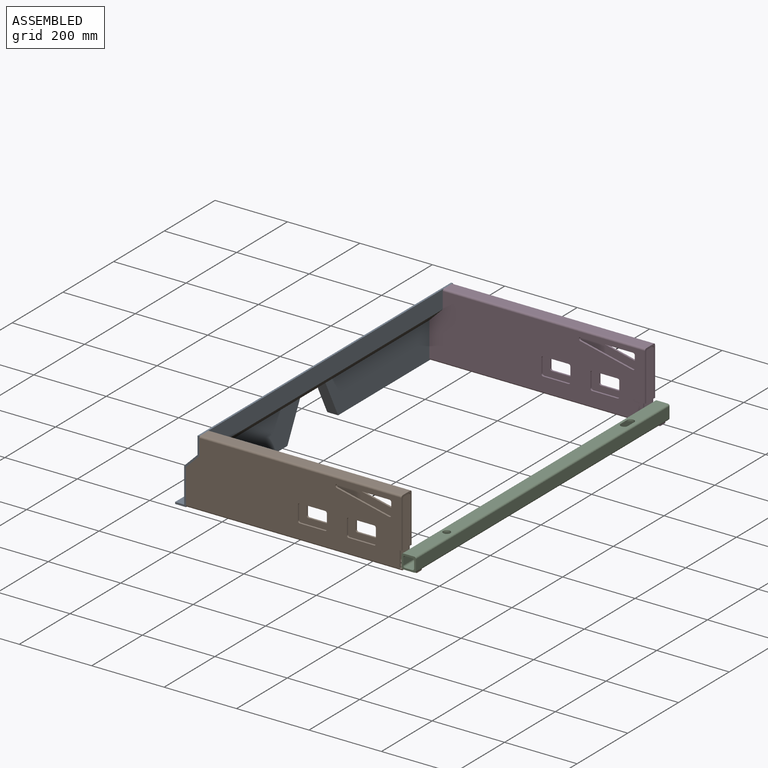
[diagram: assembled view]
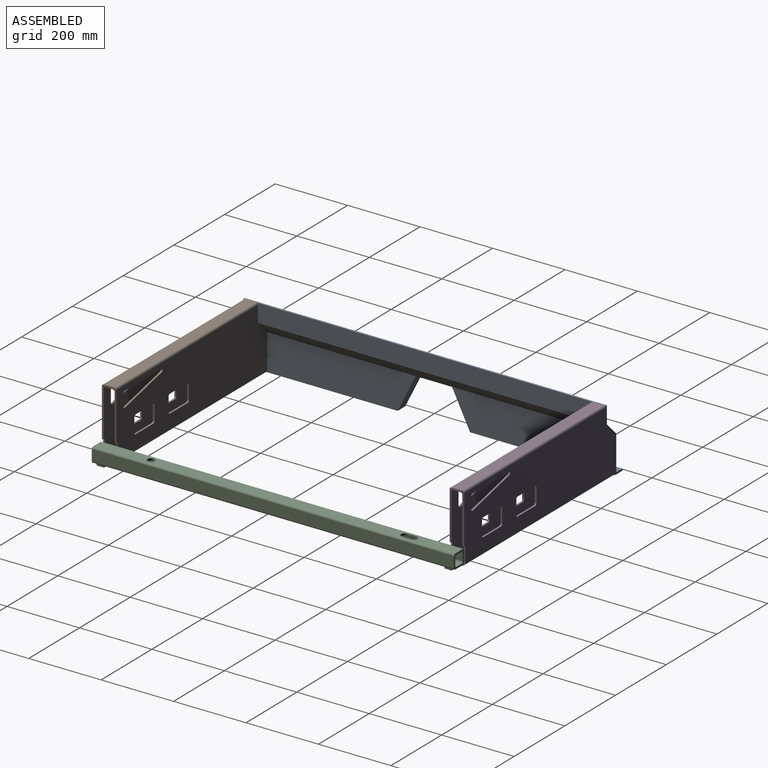
[diagram: assembled view, second angle]
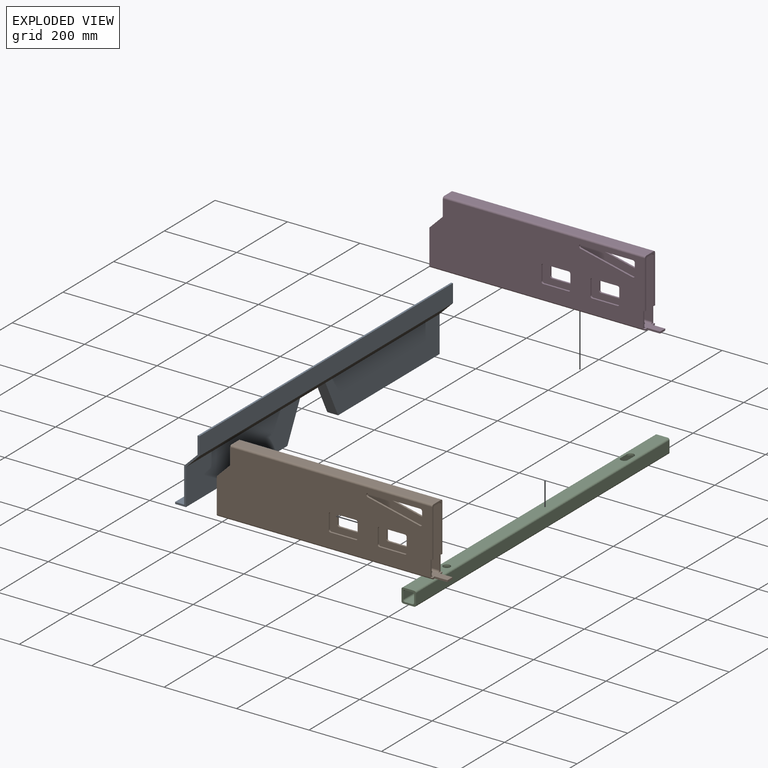
[diagram: exploded view]
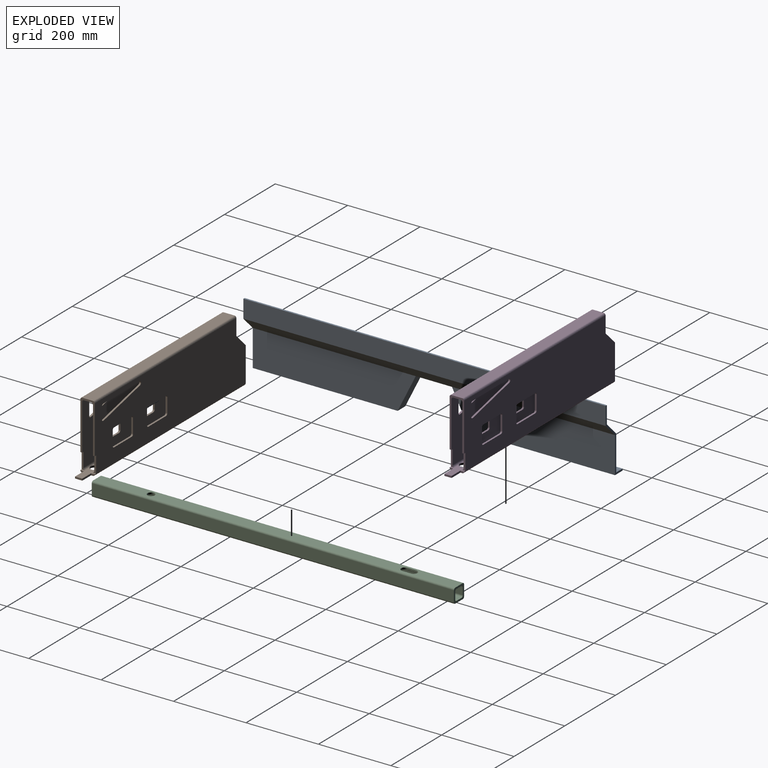
[diagram: exploded view, second angle]
ASSEMBLY  parts=4 mates=9
PART A: 22 faces, bbox 67x1000x187 mm
  f0: plane 450x100mm, normal (1,0,0), area 42500mm2, adj f7,f13,f14,f20
  f1: plane 396.91x25mm, normal (0,0,1), area 9922.7mm2, adj f2,f6,f9,f16
  f2: plane 100x50mm, normal (0,-0.89,0.45), area 2799.9mm2, adj f1,f3,f6,f15,f16
  f3: plane 106.18x27.93mm, normal (0,0,1), area 2965.5mm2, adj f2,f4,f6,f15
  f4: plane 100x50mm, normal (0,0.89,0.45), area 2799.9mm2, adj f3,f5,f6,f15,f17
  f5: plane 396.91x25mm, normal (0,0,1), area 9922.7mm2, adj f4,f6,f7,f17
  f6: plane 1000x105mm, normal (-1,0,0), area 5618mm2, adj f1,f2,f3,f4,f5,f7,f9,f10
  f7: plane 186.97x66.97mm, normal (0,1,0), area 1136.4mm2, adj f0,f5,f6,f14,f15,f17,f18,f19
  f8: plane 450x100mm, normal (1,0,0), area 42500mm2, adj f9,f10,f11,f20
  f9: plane 186.97x66.97mm, normal (0,-1,0), area 1136.4mm2, adj f1,f6,f8,f10,f15,f16,f18,f19
  f10: plane 400x30mm, normal (0,0,-1), area 12000mm2, adj f6,f8,f9,f11
  f11: plane 100x50mm, normal (0,0.89,-0.45), area 3354.1mm2, adj f6,f8,f10,f12
  f12: plane 100x30mm, normal (0,0,-1), area 3000mm2, adj f6,f11,f13,f20
  f13: plane 100x50mm, normal (0,-0.89,-0.45), area 3354.1mm2, adj f0,f6,f12,f14
  f14: plane 400x30mm, normal (0,0,-1), area 12000mm2, adj f0,f6,f7,f13
  f15: plane 1000x36.97mm, normal (-0.71,0,0.71), area 51840.7mm2, adj f2,f3,f4,f7,f9,f16,f17,f21
  f16: plane 445.45x97.07mm, normal (-1,0,0), area 40884.2mm2, adj f1,f2,f9,f15
  f17: plane 445.45x97.07mm, normal (-1,0,0), area 40884.2mm2, adj f4,f5,f7,f15
  f18: plane 1000x5mm, normal (0,0,1), area 5000mm2, adj f7,f9,f19,f21
  f19: plane 1000x50mm, normal (1,0,0), area 50000mm2, adj f7,f9,f18,f20
  f20: plane 1000x36.97mm, normal (0.71,0,-0.71), area 52286.6mm2, adj f0,f7,f8,f9,f12,f19
  f21: plane 1000x47.93mm, normal (-1,0,0), area 47928.9mm2, adj f7,f9,f15,f18
PART B: 81 faces, bbox 40x630x187 mm
  f0: plane 10x5mm, normal (0,-1,0), area 44.6mm2, adj f1,f6,f11,f79
  f1: plane 630x30mm, normal (0,0,-1), area 16943.3mm2, adj f0,f5,f6,f8,f21,f73,f74,f75
  f2: plane 355.81x20mm, normal (0,0,1), area 6976.3mm2, adj f10,f12,f76,f77
  f3: plane 162.5x20mm, normal (0,0,1), area 3180.1mm2, adj f10,f12,f21,f74
  f4: plane 595x177mm, normal (-1,0,0), area 90691.7mm2, adj f5,f16,f17,f21,f23,f24,f49,f50
  f5: cylinder r=5mm len=595mm, axis (0,-1,0), area 4673.1mm2, adj f1,f4,f8,f11,f21
  f6: cylinder r=5mm len=595mm, axis (0,-1,0), area 4673.1mm2, adj f0,f1,f7,f11,f21
  f7: plane 595x177mm, normal (1,0,0), area 90691.7mm2, adj f6,f14,f17,f21,f22,f24,f25,f26
  f8: plane 10x5mm, normal (0,-1,0), area 44.6mm2, adj f1,f5,f11,f78
  f9: plane 595x167mm, normal (1,0,0), area 84951.5mm2, adj f10,f17,f18,f21,f23,f24,f49,f50
  f10: cylinder r=5mm len=590mm, axis (0,-1,0), area 4515.7mm2, adj f2,f3,f9,f11,f21,f50,f73,f74
  f11: plane 56.69x40mm, normal (0,0,1), area 1164mm2, adj f0,f5,f6,f8,f10,f12,f33,f50
  f12: cylinder r=5mm len=590mm, axis (0,-1,0), area 4515.7mm2, adj f2,f3,f11,f13,f21,f33,f74,f75
  f13: plane 595x167mm, normal (-1,0,0), area 84951.5mm2, adj f12,f17,f20,f21,f22,f24,f25,f26
  f14: cylinder r=5mm len=558.03mm, axis (0,-1,0), area 4382.7mm2, adj f7,f15,f17,f24
  f15: plane 558.03x30mm, normal (0,0,1), area 16740.8mm2, adj f14,f16,f17,f24
  f16: cylinder r=5mm len=558.03mm, axis (0,-1,0), area 4382.7mm2, adj f4,f15,f17,f24
  f17: plane 137x40mm, normal (0,-1,0), area 1520mm2, adj f4,f7,f9,f13,f14,f15,f16,f18
  f18: cylinder r=5mm len=558.03mm, axis (0,-1,0), area 4382.7mm2, adj f9,f17,f19,f24
  f19: plane 558.03x20mm, normal (0,0,-1), area 11160.6mm2, adj f17,f18,f20,f24
  f20: cylinder r=5mm len=558.03mm, axis (0,-1,0), area 4382.7mm2, adj f13,f17,f19,f24
  f21: plane 100.03x40mm, normal (0,1,0), area 1150.3mm2, adj f1,f3,f4,f5,f6,f7,f9,f10
  f22: plane 36.97x36.97mm, normal (0,0.71,0.71), area 261.4mm2, adj f7,f13,f21,f24
  f23: plane 36.97x36.97mm, normal (0,0.71,0.71), area 261.4mm2, adj f4,f9,f21,f24
  f24: plane 50x40mm, normal (0,1,0), area 650mm2, adj f4,f7,f9,f13,f14,f15,f16,f18
  f25: cylinder r=5mm len=5mm, axis (-1,0,0), area 39.3mm2, adj f7,f13,f26,f32
  f26: plane 40x5mm, normal (0,1,0), area 200mm2, adj f7,f13,f25,f27
  f27: cylinder r=5mm len=5mm, axis (-1,0,0), area 39.3mm2, adj f7,f13,f26,f28
  f28: plane 70x5mm, normal (0,0,1), area 350mm2, adj f7,f13,f27,f29
  f29: cylinder r=5mm len=5mm, axis (-1,0,0), area 39.3mm2, adj f7,f13,f28,f30
  f30: plane 40x5mm, normal (0,-1,0), area 200mm2, adj f7,f13,f29,f31
  f31: cylinder r=5mm len=5mm, axis (-1,0,0), area 39.3mm2, adj f7,f13,f30,f32
  f32: plane 70x5mm, normal (0,0,-1), area 350mm2, adj f7,f13,f25,f31
  f33: plane 45x10mm, normal (0,-1,0), area 230.4mm2, adj f7,f11,f12,f13,f34
  f34: plane 5x5mm, normal (0,0,-1), area 25mm2, adj f7,f13,f17,f33
  f35: plane 144.14x5mm, normal (0,0,-1), area 720.7mm2, adj f7,f13,f36,f40
  f36: cylinder r=5mm len=5mm, axis (-1,0,0), area 39.3mm2, adj f7,f13,f35,f37
  f37: plane 33.15x5mm, normal (0,1,0), area 165.8mm2, adj f7,f13,f36,f38
  f38: cylinder r=5mm len=6.12mm, axis (-1,0,0), area 44.9mm2, adj f7,f13,f37,f39
  f39: plane 144.14x33.15mm, normal (0,-0.22,0.97), area 739.5mm2, adj f7,f13,f38,f40
  f40: cylinder r=5mm len=9.87mm, axis (-1,0,0), area 72.9mm2, adj f7,f13,f35,f39
  f41: cylinder r=5mm len=5mm, axis (-1,0,0), area 39.3mm2, adj f7,f13,f42,f48
  f42: plane 40x5mm, normal (0,1,0), area 200mm2, adj f7,f13,f41,f43
  f43: cylinder r=5mm len=5mm, axis (-1,0,0), area 39.3mm2, adj f7,f13,f42,f44
  f44: plane 70x5mm, normal (0,0,1), area 350mm2, adj f7,f13,f43,f45
  f45: cylinder r=5mm len=5mm, axis (-1,0,0), area 39.3mm2, adj f7,f13,f44,f46
  f46: plane 40x5mm, normal (0,-1,0), area 200mm2, adj f7,f13,f45,f47
  f47: cylinder r=5mm len=5mm, axis (-1,0,0), area 39.3mm2, adj f7,f13,f46,f48
  f48: plane 70x5mm, normal (0,0,-1), area 350mm2, adj f7,f13,f41,f47
  f49: plane 5x5mm, normal (0,0,-1), area 25mm2, adj f4,f9,f17,f50
  f50: plane 45x10mm, normal (0,-1,0), area 230.4mm2, adj f4,f9,f10,f11,f49
  f51: plane 70x5mm, normal (0,0,-1), area 350mm2, adj f4,f9,f52,f58
  f52: cylinder r=5mm len=5mm, axis (-1,0,0), area 39.3mm2, adj f4,f9,f51,f53
  f53: plane 40x5mm, normal (0,-1,0), area 200mm2, adj f4,f9,f52,f54
  f54: cylinder r=5mm len=5mm, axis (-1,0,0), area 39.3mm2, adj f4,f9,f53,f55
  f55: plane 70x5mm, normal (0,0,1), area 350mm2, adj f4,f9,f54,f56
  f56: cylinder r=5mm len=5mm, axis (-1,0,0), area 39.3mm2, adj f4,f9,f55,f57
  f57: plane 40x5mm, normal (0,1,0), area 200mm2, adj f4,f9,f56,f58
  f58: cylinder r=5mm len=5mm, axis (-1,0,0), area 39.3mm2, adj f4,f9,f51,f57
  f59: cylinder r=5mm len=9.87mm, axis (-1,0,0), area 72.9mm2, adj f4,f9,f60,f64
  f60: plane 144.14x33.15mm, normal (0,-0.22,0.97), area 739.5mm2, adj f4,f9,f59,f61
  f61: cylinder r=5mm len=6.12mm, axis (-1,0,0), area 44.9mm2, adj f4,f9,f60,f62
  f62: plane 33.15x5mm, normal (0,1,0), area 165.8mm2, adj f4,f9,f61,f63
  f63: cylinder r=5mm len=5mm, axis (-1,0,0), area 39.3mm2, adj f4,f9,f62,f64
  f64: plane 144.14x5mm, normal (0,0,-1), area 720.7mm2, adj f4,f9,f59,f63
  f65: plane 70x5mm, normal (0,0,-1), area 350mm2, adj f4,f9,f66,f72
  f66: cylinder r=5mm len=5mm, axis (-1,0,0), area 39.3mm2, adj f4,f9,f65,f67
  f67: plane 40x5mm, normal (0,-1,0), area 200mm2, adj f4,f9,f66,f68
  f68: cylinder r=5mm len=5mm, axis (-1,0,0), area 39.3mm2, adj f4,f9,f67,f69
  f69: plane 70x5mm, normal (0,0,1), area 350mm2, adj f4,f9,f68,f70
  f70: cylinder r=5mm len=5mm, axis (-1,0,0), area 39.3mm2, adj f4,f9,f69,f71
  f71: plane 40x5mm, normal (0,1,0), area 200mm2, adj f4,f9,f70,f72
  f72: cylinder r=5mm len=5mm, axis (-1,0,0), area 39.3mm2, adj f4,f9,f65,f71
  f73: plane 25x5.67mm, normal (1,0,0), area 141.7mm2, adj f1,f10,f74,f76
  f74: cylinder r=12.5mm len=25mm, axis (0,0,-1), area 201.9mm2, adj f1,f3,f10,f12,f73,f75
  f75: plane 25x5.67mm, normal (-1,0,0), area 141.7mm2, adj f1,f12,f74,f76
  f76: cylinder r=12.5mm len=25mm, axis (0,0,-1), area 201.9mm2, adj f1,f2,f10,f12,f73,f75
  f77: cylinder r=12.5mm len=25mm, axis (0,0,-1), area 403.9mm2, adj f1,f2,f10,f11,f12
  f78: plane 35x5mm, normal (-1,0,0), area 175mm2, adj f1,f8,f11,f80
  f79: plane 35x5mm, normal (1,0,0), area 175mm2, adj f0,f1,f11,f80
  f80: plane 20x5mm, normal (0,-1,0), area 100mm2, adj f1,f11,f78,f79
PART C: 36 faces, bbox 40x1000x40 mm
  f0: plane 1000x30mm, normal (0,0,1), area 28872.1mm2, adj f11,f12,f16,f17,f31,f32,f33,f34
  f1: plane 1000x30mm, normal (0,0,-1), area 28872.1mm2, adj f14,f15,f16,f17,f26,f27,f28,f29
  f2: plane 700x20mm, normal (0,0,-1), area 13685.8mm2, adj f18,f20,f32,f35
  f3: plane 25x0mm, normal (0,0,-1), area 0mm2, adj f18,f32,f33
  f4: plane 150x20mm, normal (0,0,-1), area 2842.9mm2, adj f17,f18,f20,f35
  f5: plane 25x0.02mm, normal (0,0,-1), area 0.4mm2, adj f20,f31,f32,f34
  f6: plane 700x20mm, normal (0,0,1), area 13685.8mm2, adj f22,f25,f28,f30
  f7: plane 25x0mm, normal (0,0,1), area 0mm2, adj f25,f27,f28
  f8: plane 150x20mm, normal (0,0,1), area 2842.9mm2, adj f17,f22,f25,f30
  f9: plane 25x0.02mm, normal (0,0,1), area 0.4mm2, adj f22,f26,f28,f29
  f10: plane 1000x30mm, normal (1,0,0), area 30000mm2, adj f11,f15,f16,f17
  f11: cylinder r=5mm len=1000mm, axis (0,-1,0), area 7854mm2, adj f0,f10,f16,f17
  f12: cylinder r=5mm len=1000mm, axis (0,-1,0), area 7854mm2, adj f0,f13,f16,f17
  f13: plane 1000x30mm, normal (-1,0,0), area 30000mm2, adj f12,f14,f16,f17
  f14: cylinder r=5mm len=1000mm, axis (0,-1,0), area 7854mm2, adj f1,f13,f16,f17
  f15: cylinder r=5mm len=1000mm, axis (0,-1,0), area 7854mm2, adj f1,f10,f16,f17
  f16: plane 40x40mm, normal (0,1,0), area 700mm2, adj f0,f1,f10,f11,f12,f13,f14,f15
  f17: plane 40x40mm, normal (0,-1,0), area 700mm2, adj f0,f1,f4,f8,f10,f11,f12,f13
  f18: cylinder r=5mm len=1000mm, axis (0,-1,0), area 7854mm2, adj f2,f3,f4,f16,f17,f19,f24,f34
  f19: plane 125x20mm, normal (0,0,-1), area 2342.9mm2, adj f16,f18,f20,f34
  f20: cylinder r=5mm len=1000mm, axis (0,-1,0), area 7854mm2, adj f2,f4,f5,f16,f17,f19,f21
  f21: plane 1000x20mm, normal (1,0,0), area 20000mm2, adj f16,f17,f20,f22
  f22: cylinder r=5mm len=1000mm, axis (0,-1,0), area 7854mm2, adj f6,f8,f9,f16,f17,f21,f23
  f23: plane 125x20mm, normal (0,0,1), area 2342.9mm2, adj f16,f22,f25,f26
  f24: plane 1000x20mm, normal (-1,0,0), area 20000mm2, adj f16,f17,f18,f25
  f25: cylinder r=5mm len=1000mm, axis (0,-1,0), area 7854mm2, adj f6,f7,f8,f16,f17,f23,f24,f26
  f26: cylinder r=10mm len=20mm, axis (0,0,1), area 159.9mm2, adj f1,f9,f23,f25,f27,f29
  f27: plane 24.92x5mm, normal (-1,0,0), area 124.6mm2, adj f1,f7,f26,f28
  f28: cylinder r=10mm len=20mm, axis (0,0,1), area 160.3mm2, adj f1,f6,f7,f9,f27,f29
  f29: plane 23.89x5mm, normal (1,0,0), area 119.4mm2, adj f1,f9,f26,f28
  f30: cylinder r=10mm len=20mm, axis (0,0,1), area 314.2mm2, adj f1,f6,f8
  f31: plane 23.89x5mm, normal (1,0,0), area 119.4mm2, adj f0,f5,f32,f34
  f32: cylinder r=10mm len=20mm, axis (0,0,1), area 160.3mm2, adj f0,f2,f3,f5,f31,f33
  f33: plane 24.92x5mm, normal (-1,0,0), area 124.6mm2, adj f0,f3,f32,f34
  f34: cylinder r=10mm len=20mm, axis (0,0,1), area 159.9mm2, adj f0,f5,f18,f19,f31,f33
  f35: cylinder r=10mm len=20mm, axis (0,0,1), area 314.2mm2, adj f0,f2,f4
PART D: same geometry as B
PLACE A t=(-221.11,-55.31,-13.97)mm fixed
PLACE B rot(axis=(0,0,1),90deg) t=(403.89,-535.31,36.03)mm
PLACE C t=(423.89,-555.31,11.03)mm
PLACE D rot(axis=(0,0,1),90deg) t=(403.89,424.69,36.03)mm
MATE planar C.f1 <-> B.f2  axis (0,0,-1) through (423.89,-61.72,-8.97)mm
MATE planar D.f1 <-> A.f14  axis (0,0,-1) through (119.21,424.69,-13.97)mm
MATE planar C.f17 <-> B.f4  axis (0,-1,0) through (423.89,-555.31,11.03)mm
MATE planar B.f21 <-> A.f8  axis (-1,0,0) through (-191.11,-535.31,29.9)mm
MATE planar C.f13 <-> B.f17  axis (-1,0,0) through (403.89,-55.31,11.03)mm
MATE planar A.f7 <-> D.f7  axis (0,1,0) through (-183.04,444.69,71.27)mm
MATE planar A.f0 <-> D.f21  axis (1,0,0) through (-191.11,444.69,36.03)mm
MATE planar B.f4 <-> A.f9  axis (0,-1,0) through (93.03,-555.31,77.74)mm
MATE planar B.f1 <-> A.f10  axis (0,0,-1) through (119.21,-535.31,-13.97)mm
